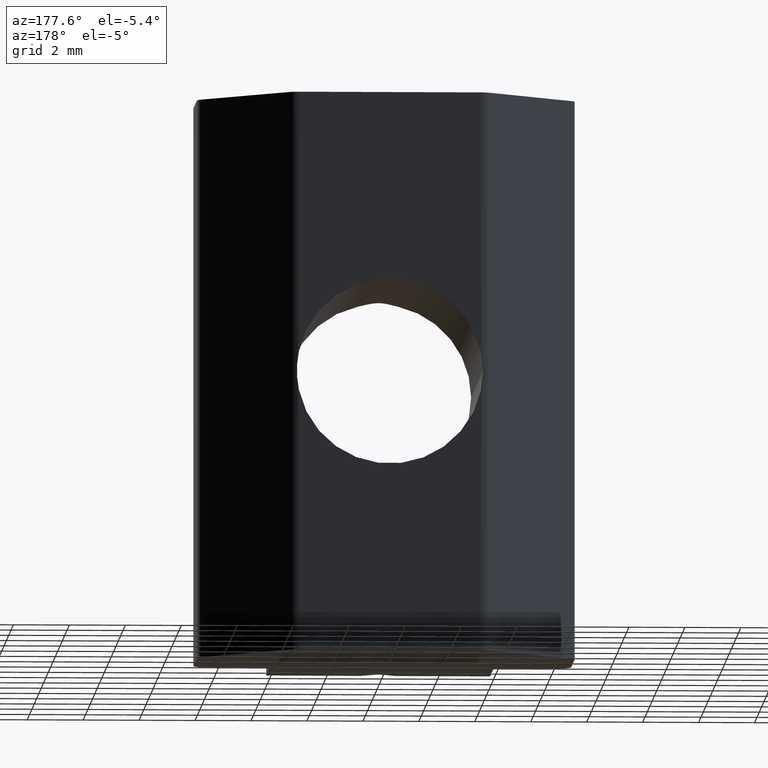
[diagram: clean part render]
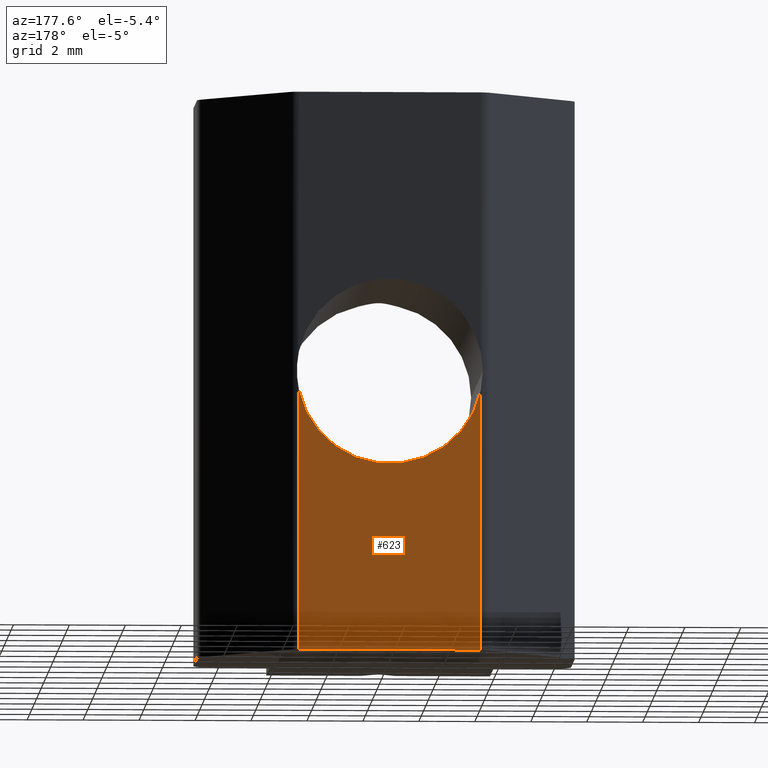
[diagram: same view with one face highlighted and labeled with its STEP entity id]
A machine part, auxiliary view. The second image highlights one B-rep face of the part: STEP entity #623.
In plain terms, the highlighted planar face has unit normal (0, 1, 0).
Its self-contained STEP definition (entity closure, byte-faithful):
#28=PLANE('',#699);
#57=FACE_OUTER_BOUND('',#88,.T.);
#88=EDGE_LOOP('',(#540,#541,#542,#543));
#118=LINE('',#1030,#175);
#131=LINE('',#1064,#188);
#148=LINE('',#1105,#205);
#175=VECTOR('',#783,10.);
#188=VECTOR('',#814,10.);
#205=VECTOR('',#855,10.);
#213=CIRCLE('',#651,3.3235);
#245=VERTEX_POINT('',#885);
#247=VERTEX_POINT('',#897);
#278=VERTEX_POINT('',#1028);
#290=VERTEX_POINT('',#1062);
#308=EDGE_CURVE('',#247,#245,#213,.T.);
#351=EDGE_CURVE('',#278,#245,#118,.T.);
#368=EDGE_CURVE('',#290,#278,#131,.T.);
#389=EDGE_CURVE('',#290,#247,#148,.T.);
#540=ORIENTED_EDGE('',*,*,#308,.T.);
#541=ORIENTED_EDGE('',*,*,#351,.F.);
#542=ORIENTED_EDGE('',*,*,#368,.F.);
#543=ORIENTED_EDGE('',*,*,#389,.T.);
#623=ADVANCED_FACE('',(#57),#28,.T.);
#651=AXIS2_PLACEMENT_3D('',#898,#712,#713);
#699=AXIS2_PLACEMENT_3D('',#1107,#858,#859);
#712=DIRECTION('center_axis',(0.,-1.,0.));
#713=DIRECTION('ref_axis',(1.,0.,0.));
#783=DIRECTION('',(0.,0.,1.));
#814=DIRECTION('',(1.,0.,0.));
#855=DIRECTION('',(0.,0.,1.));
#858=DIRECTION('center_axis',(0.,1.,0.));
#859=DIRECTION('ref_axis',(-1.,0.,0.));
#885=CARTESIAN_POINT('',(3.25,7.,-0.695091540734008));
#897=CARTESIAN_POINT('',(-3.25,7.,-0.695091540734006));
#898=CARTESIAN_POINT('Origin',(0.,7.,0.));
#1028=CARTESIAN_POINT('',(3.25,7.,-10.));
#1030=CARTESIAN_POINT('',(3.25,7.,0.));
#1062=CARTESIAN_POINT('',(-3.25,7.,-10.));
#1064=CARTESIAN_POINT('',(3.25,7.,-10.));
#1105=CARTESIAN_POINT('',(-3.25,7.,0.));
#1107=CARTESIAN_POINT('Origin',(3.25,7.,0.));